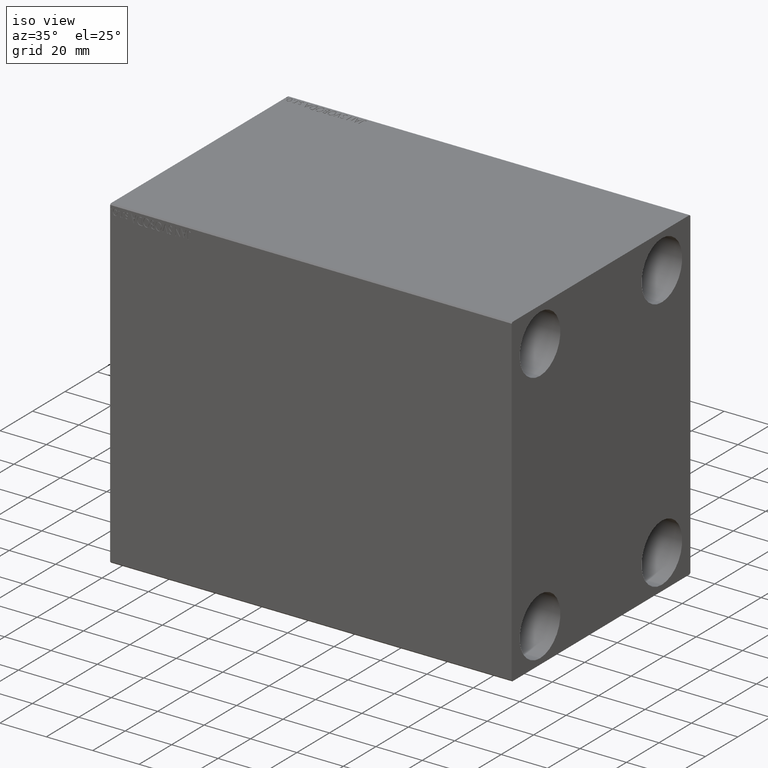
[diagram: clean part render]
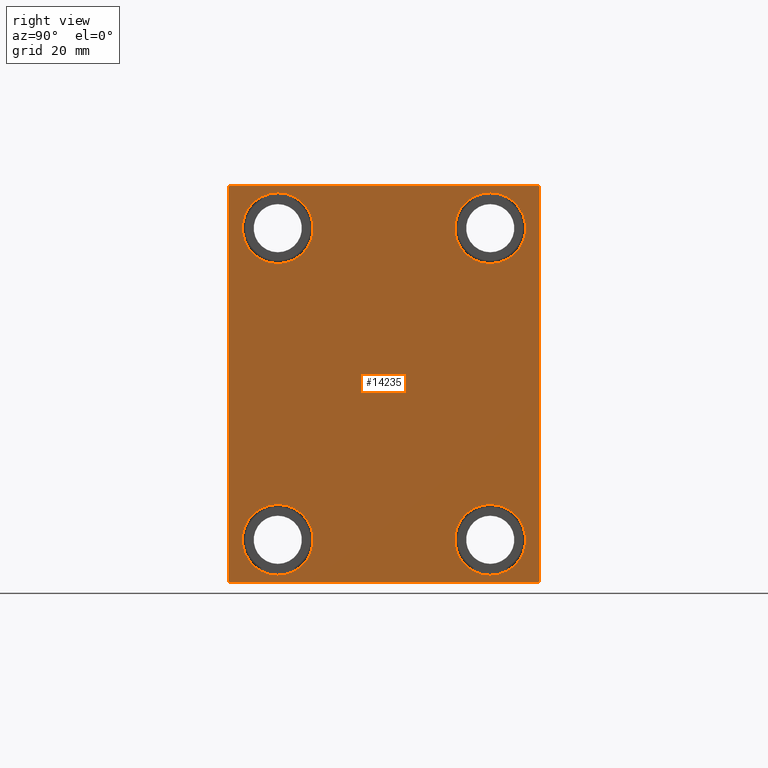
[diagram: tour spotlight — one face highlighted and labeled with its STEP entity id]
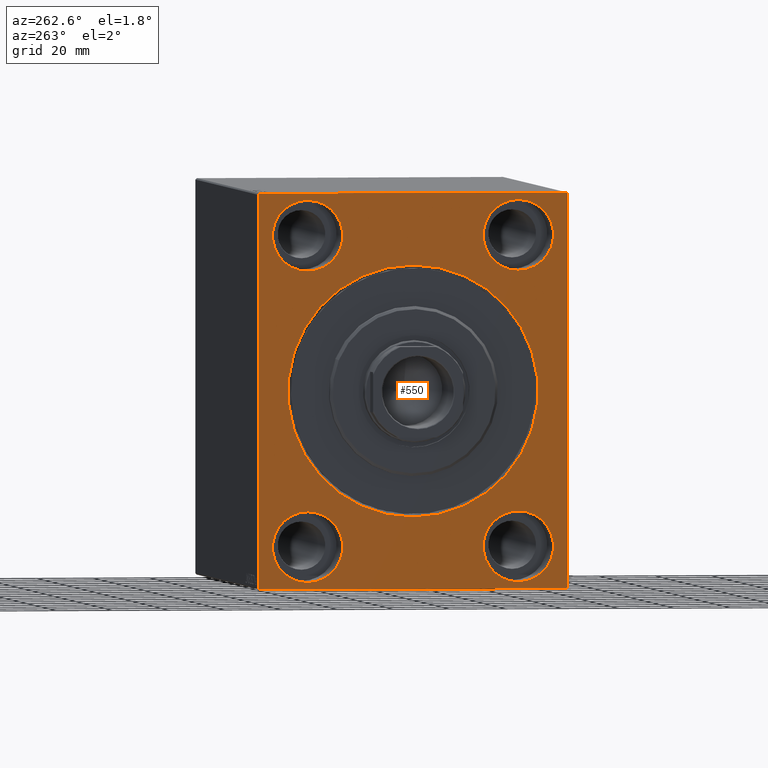
[diagram: tour spotlight — one face highlighted and labeled with its STEP entity id]
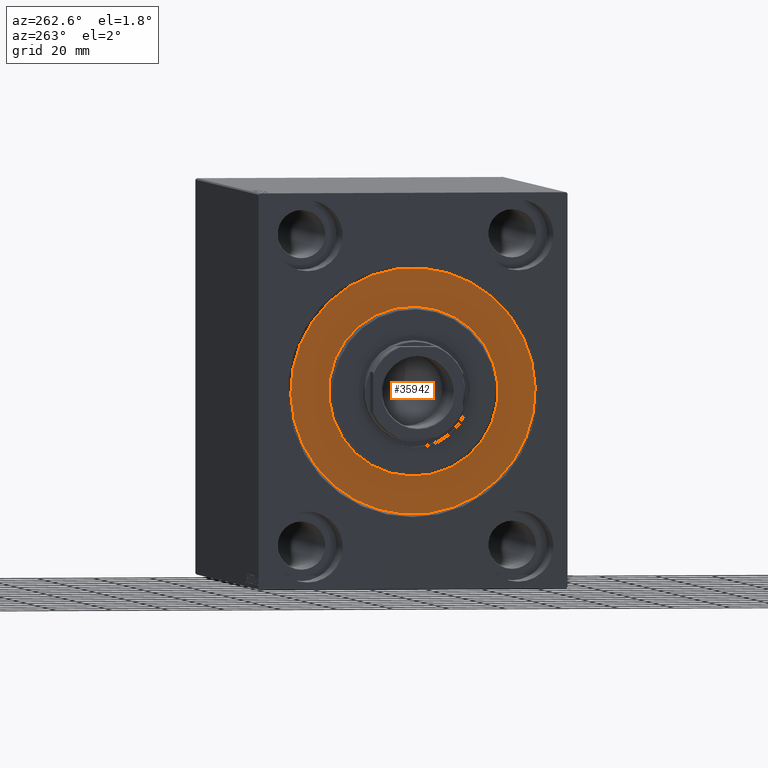
[diagram: tour spotlight — one face highlighted and labeled with its STEP entity id]
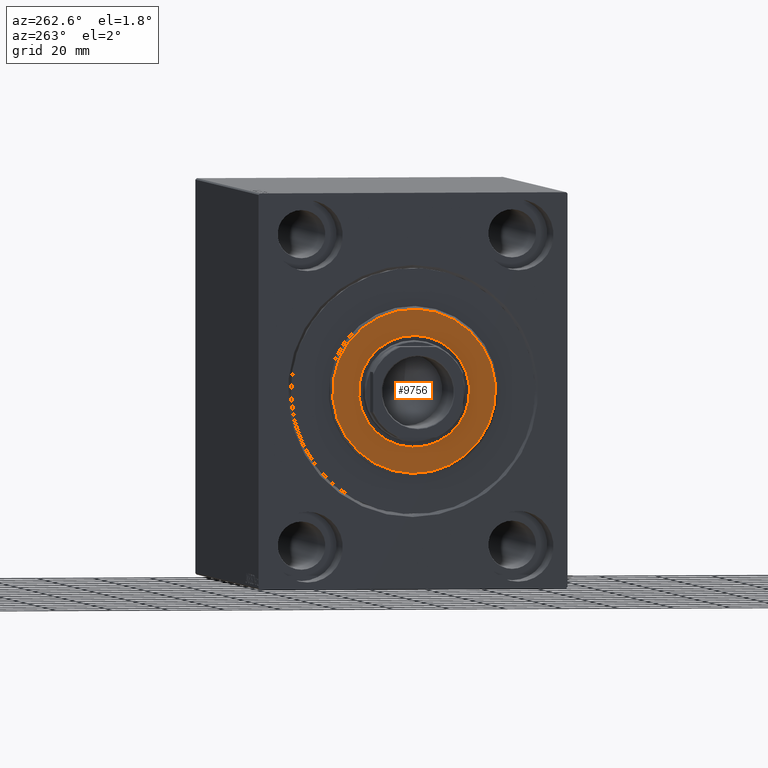
[diagram: tour spotlight — one face highlighted and labeled with its STEP entity id]
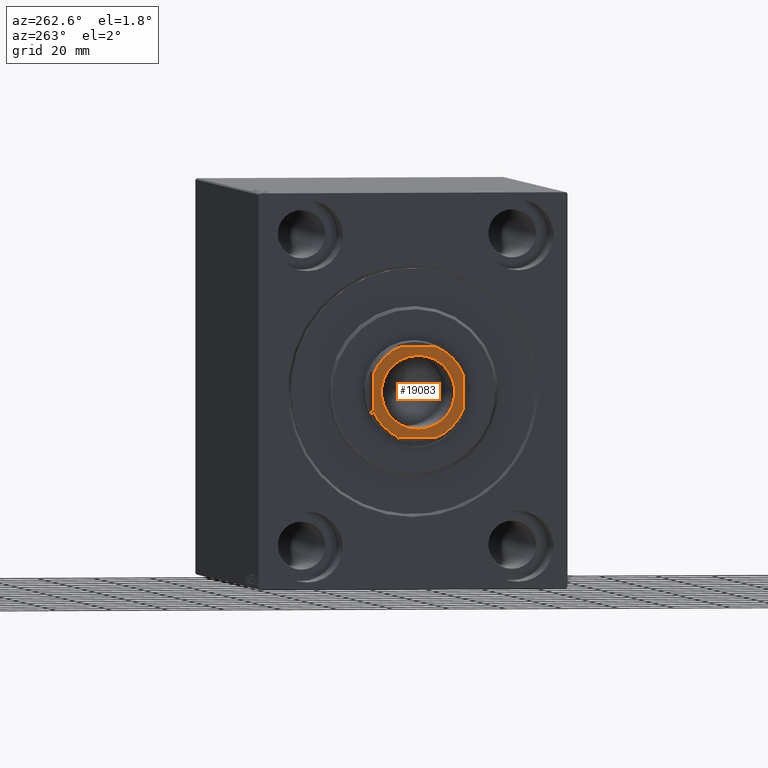
[diagram: tour spotlight — one face highlighted and labeled with its STEP entity id]
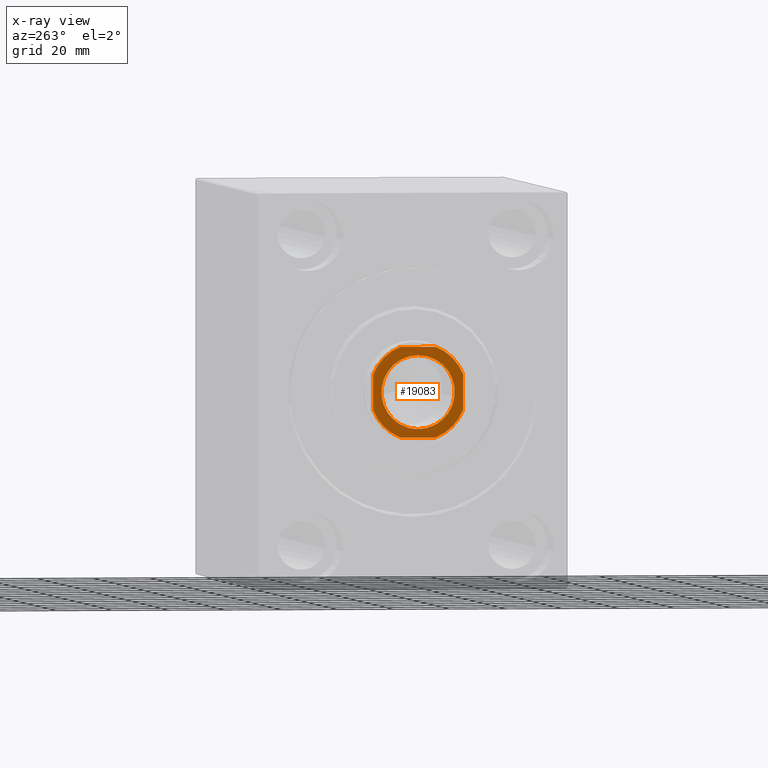
[diagram: x-ray of the same camera — body ghosted, this tour face saturated]
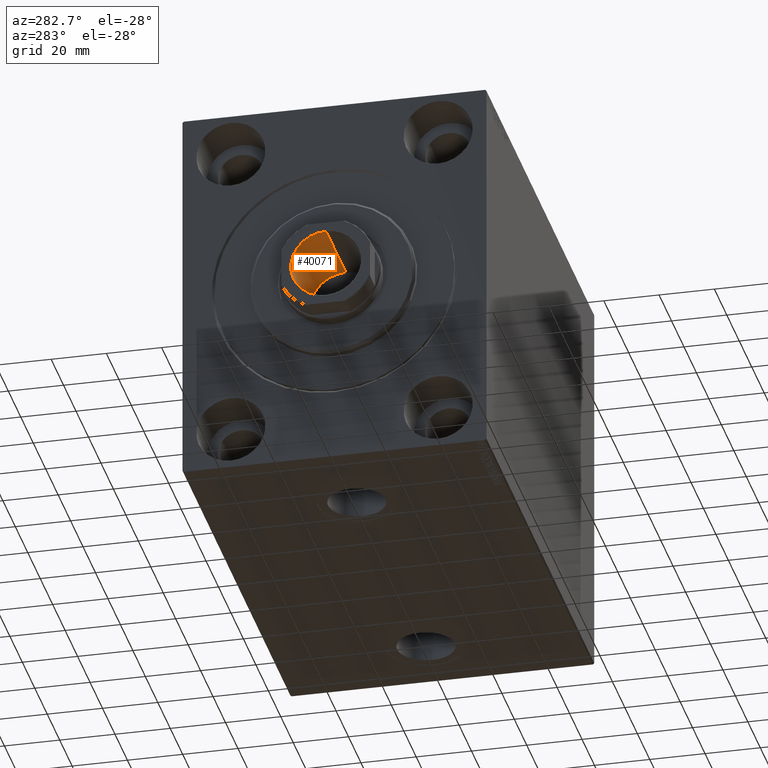
[diagram: tour spotlight — one face highlighted and labeled with its STEP entity id]
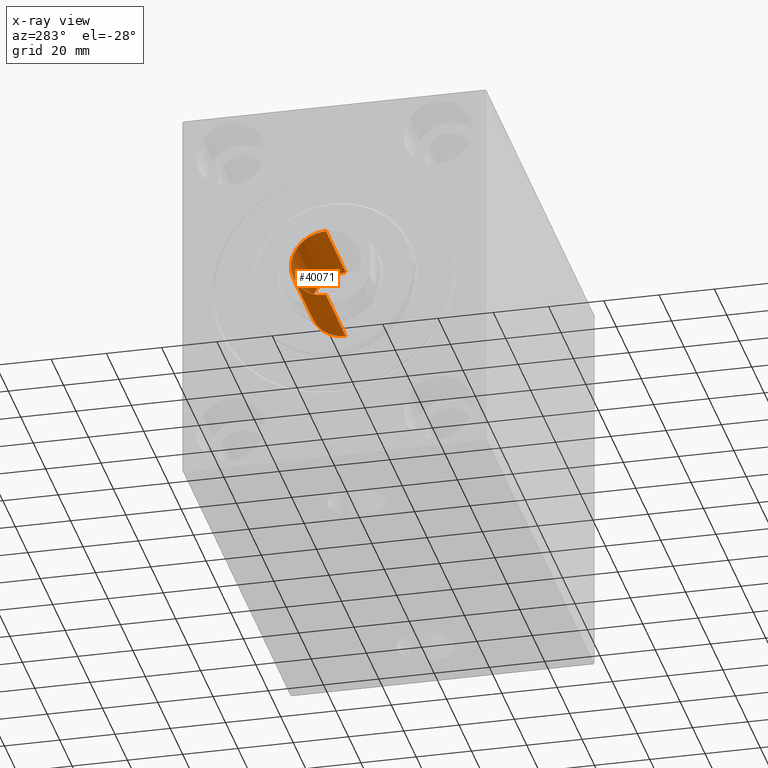
[diagram: x-ray of the same camera — body ghosted, this tour face saturated]
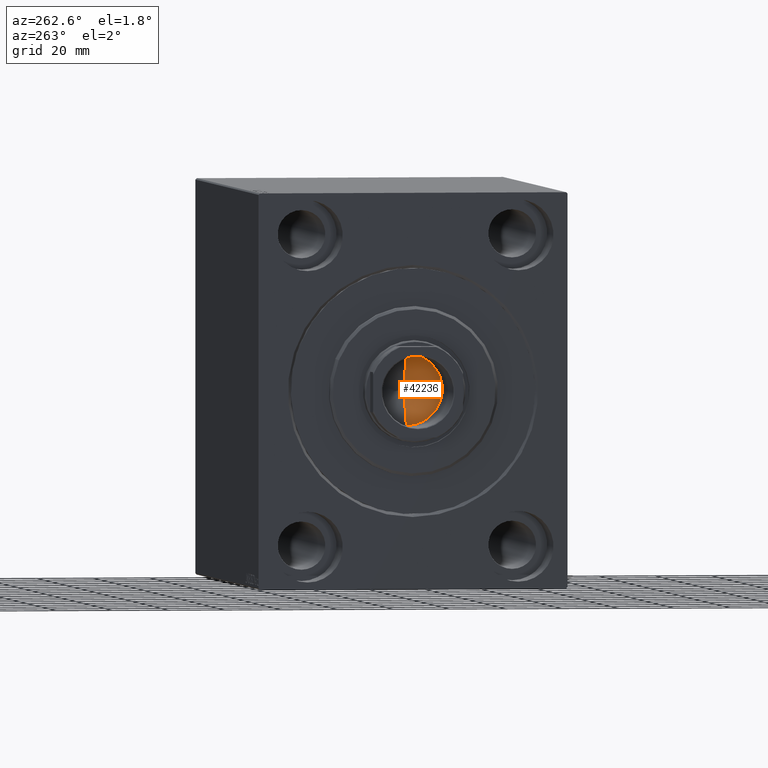
[diagram: tour spotlight — one face highlighted and labeled with its STEP entity id]
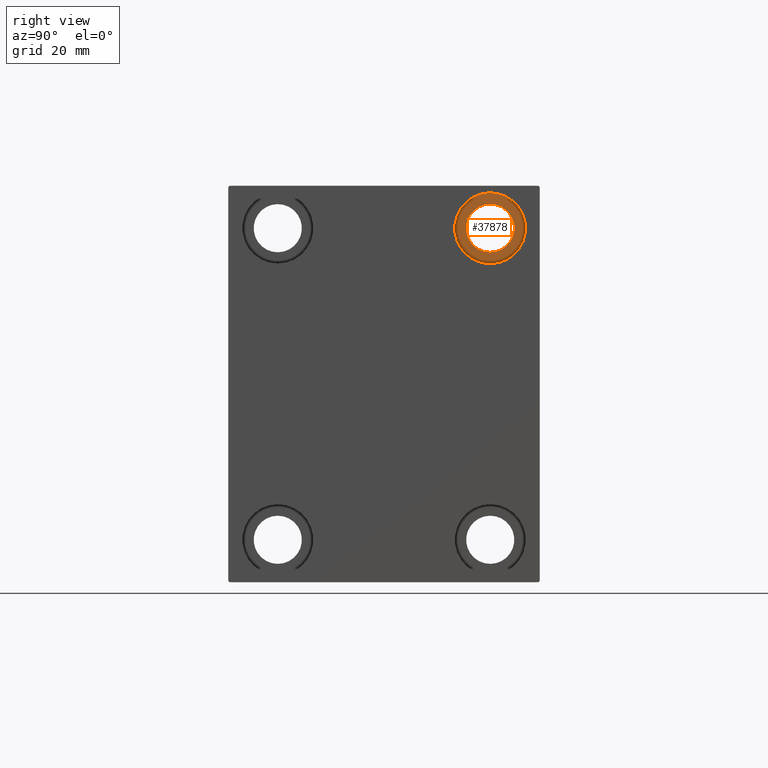
[diagram: tour spotlight — one face highlighted and labeled with its STEP entity id]
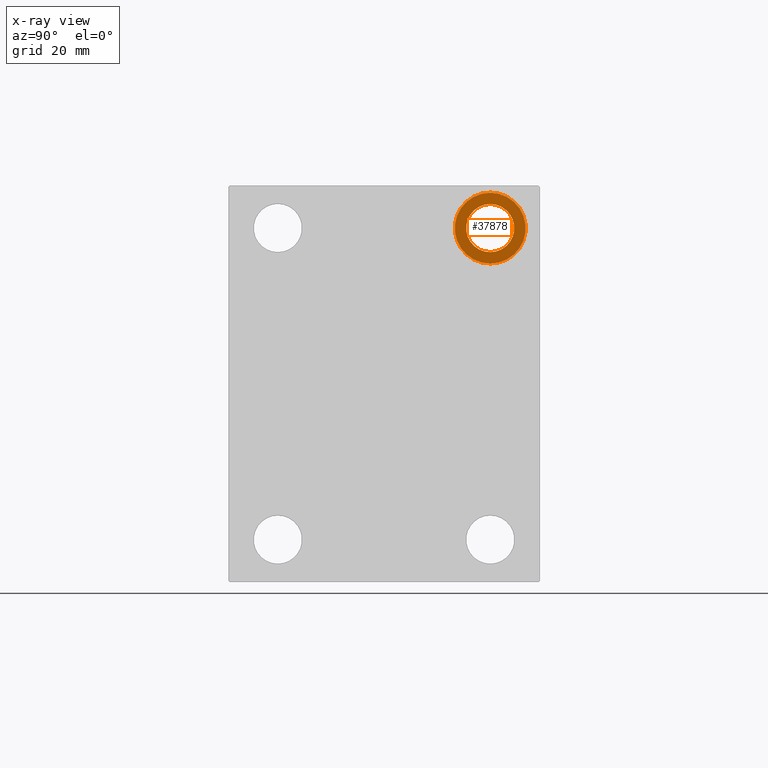
[diagram: x-ray of the same camera — body ghosted, this tour face saturated]
A machine part: a face-by-face anatomy tour. The part has 865 B-rep faces; the first image is the clean iso view, then the 8 largest visible faces are spotlighted one at a time (largest first), each with its STEP entity span.

Face 1 — right view, entity #14235. In plain terms, the highlighted planar face has unit normal (1, 0, 0).
Definition (entity closure, byte-faithful):
#67 = CARTESIAN_POINT ( 'NONE',  ( 173.0000000000000000, 55.00000000000002132, -70.00000000000000000 ) ) ;
#109 = CARTESIAN_POINT ( 'NONE',  ( 173.0000000000000000, 55.00000000000002132, -69.49999999999997158 ) ) ;
#133 = VERTEX_POINT ( 'NONE', #7576 ) ;
#585 = ORIENTED_EDGE ( 'NONE', *, *, #25697, .T. ) ;
#740 = ORIENTED_EDGE ( 'NONE', *, *, #17858, .T. ) ;
#942 = DIRECTION ( 'NONE',  ( -1.000000000000000000, -0.000000000000000000, -0.000000000000000000 ) ) ;
#961 = VERTEX_POINT ( 'NONE', #2200 ) ;
#1082 = CARTESIAN_POINT ( 'NONE',  ( 173.0000000000000000, -37.50000000000002132, -67.49999999999998579 ) ) ;
#1111 = AXIS2_PLACEMENT_3D ( 'NONE', #3332, #9806, #13141 ) ;
#1386 = CARTESIAN_POINT ( 'NONE',  ( 173.0000000000000000, -54.49999999999997868, -70.00000000000002842 ) ) ;
#1506 = DIRECTION ( 'NONE',  ( -1.000000000000000000, -0.000000000000000000, -0.000000000000000000 ) ) ;
#1815 = CARTESIAN_POINT ( 'NONE',  ( 173.0000000000000000, 54.49999999999996447, 70.00000000000000000 ) ) ;
#2200 = CARTESIAN_POINT ( 'NONE',  ( 173.0000000000000000, 37.50000000000000711, 42.50000000000000711 ) ) ;
#2223 = VECTOR ( 'NONE', #9456, 1000.000000000000000 ) ;
#3332 = CARTESIAN_POINT ( 'NONE',  ( 173.0000000000000000, 0.000000000000000000, 0.000000000000000000 ) ) ;
#3417 = EDGE_LOOP ( 'NONE', ( #16374, #40602 ) ) ;
#3421 = VERTEX_POINT ( 'NONE', #1815 ) ;
#3668 = DIRECTION ( 'NONE',  ( -1.000000000000000000, -0.000000000000000000, -0.000000000000000000 ) ) ;
#4153 = ORIENTED_EDGE ( 'NONE', *, *, #15164, .T. ) ;
#5071 = VERTEX_POINT ( 'NONE', #27363 ) ;
#5803 = CARTESIAN_POINT ( 'NONE',  ( 173.0000000000000000, -55.00000000000000711, 69.99999999999998579 ) ) ;
#5966 = DIRECTION ( 'NONE',  ( -1.000000000000000000, -0.000000000000000000, -0.000000000000000000 ) ) ;
#6499 = CARTESIAN_POINT ( 'NONE',  ( 173.0000000000000000, 62.24999999999997868, 62.24999999999997868 ) ) ;
#6503 = VERTEX_POINT ( 'NONE', #13217 ) ;
#6733 = EDGE_CURVE ( 'NONE', #6503, #21303, #12435, .T. ) ;
#7024 = VERTEX_POINT ( 'NONE', #43904 ) ;
#7202 = CARTESIAN_POINT ( 'NONE',  ( 173.0000000000000000, -62.25000000000000000, 62.25000000000000000 ) ) ;
#7443 = VECTOR ( 'NONE', #43758, 1000.000000000000000 ) ;
#7576 = CARTESIAN_POINT ( 'NONE',  ( 173.0000000000000000, 37.50000000000000711, 67.50000000000000000 ) ) ;
#7696 = ORIENTED_EDGE ( 'NONE', *, *, #31282, .T. ) ;
#8176 = VECTOR ( 'NONE', #12058, 1000.000000000000000 ) ;
#8335 = CIRCLE ( 'NONE', #11234, 12.49999999999999645 ) ;
#8479 = EDGE_LOOP ( 'NONE', ( #28709, #42524, #39487, #24109, #13088, #16575, #41735, #585 ) ) ;
#8829 = EDGE_CURVE ( 'NONE', #22589, #7024, #30621, .T. ) ;
#8962 = CIRCLE ( 'NONE', #14659, 12.49999999999999645 ) ;
#9147 = DIRECTION ( 'NONE',  ( 0.000000000000000000, 0.000000000000000000, 1.000000000000000000 ) ) ;
#9295 = CARTESIAN_POINT ( 'NONE',  ( 173.0000000000000000, -37.50000000000000711, 55.00000000000000711 ) ) ;
#9456 = DIRECTION ( 'NONE',  ( 0.000000000000000000, -1.000000000000000000, -1.261617073437677999E-16 ) ) ;
#9758 = ORIENTED_EDGE ( 'NONE', *, *, #17751, .T. ) ;
#9806 = DIRECTION ( 'NONE',  ( 1.000000000000000000, 0.000000000000000000, 0.000000000000000000 ) ) ;
#10138 = DIRECTION ( 'NONE',  ( 0.000000000000000000, 0.000000000000000000, 1.000000000000000000 ) ) ;
#10501 = EDGE_CURVE ( 'NONE', #30088, #32165, #15386, .T. ) ;
#10564 = VERTEX_POINT ( 'NONE', #16269 ) ;
#11234 = AXIS2_PLACEMENT_3D ( 'NONE', #37552, #3668, #20605 ) ;
#11320 = CIRCLE ( 'NONE', #26977, 12.49999999999999645 ) ;
#11442 = VERTEX_POINT ( 'NONE', #40362 ) ;
#12058 = DIRECTION ( 'NONE',  ( 0.000000000000000000, 1.000000000000000000, 2.523234146875355012E-16 ) ) ;
#12435 = CIRCLE ( 'NONE', #21704, 12.49999999999999645 ) ;
#12445 = EDGE_LOOP ( 'NONE', ( #7696, #4153 ) ) ;
#12473 = EDGE_LOOP ( 'NONE', ( #12779, #9758 ) ) ;
#12698 = FACE_BOUND ( 'NONE', #26702, .T. ) ;
#12779 = ORIENTED_EDGE ( 'NONE', *, *, #35122, .T. ) ;
#12806 = DIRECTION ( 'NONE',  ( -1.000000000000000000, -0.000000000000000000, -0.000000000000000000 ) ) ;
#13088 = ORIENTED_EDGE ( 'NONE', *, *, #10501, .T. ) ;
#13141 = DIRECTION ( 'NONE',  ( 0.000000000000000000, 0.000000000000000000, -1.000000000000000000 ) ) ;
#13217 = CARTESIAN_POINT ( 'NONE',  ( 173.0000000000000000, -37.50000000000002132, -42.49999999999999289 ) ) ;
#13328 = AXIS2_PLACEMENT_3D ( 'NONE', #20162, #12806, #10138 ) ;
#14235 = ADVANCED_FACE ( 'NONE', ( #22959, #43232, #12698, #39890, #36553 ), #33876, .T. ) ;
#14659 = AXIS2_PLACEMENT_3D ( 'NONE', #42583, #19181, #9147 ) ;
#14833 = LINE ( 'NONE', #21093, #32061 ) ;
#14960 = CIRCLE ( 'NONE', #15649, 12.49999999999999645 ) ;
#15164 = EDGE_CURVE ( 'NONE', #5071, #31842, #8962, .T. ) ;
#15175 = CARTESIAN_POINT ( 'NONE',  ( 173.0000000000000000, -37.50000000000002132, -54.99999999999999289 ) ) ;
#15386 = LINE ( 'NONE', #28997, #8176 ) ;
#15649 = AXIS2_PLACEMENT_3D ( 'NONE', #9295, #1506, #39833 ) ;
#16116 = AXIS2_PLACEMENT_3D ( 'NONE', #15175, #21658, #35264 ) ;
#16187 = EDGE_CURVE ( 'NONE', #21303, #6503, #28219, .T. ) ;
#16269 = CARTESIAN_POINT ( 'NONE',  ( 173.0000000000000000, -37.50000000000000711, 67.50000000000000000 ) ) ;
#16302 = EDGE_CURVE ( 'NONE', #11442, #43453, #36799, .T. ) ;
#16374 = ORIENTED_EDGE ( 'NONE', *, *, #16187, .T. ) ;
#16575 = ORIENTED_EDGE ( 'NONE', *, *, #35233, .T. ) ;
#16623 = EDGE_CURVE ( 'NONE', #961, #133, #26077, .T. ) ;
#16791 = CARTESIAN_POINT ( 'NONE',  ( 173.0000000000000000, -62.24999999999924682, -62.25000000000098055 ) ) ;
#16974 = DIRECTION ( 'NONE',  ( -0.000000000000000000, -0.7071067811865474617, 0.7071067811865474617 ) ) ;
#17428 = DIRECTION ( 'NONE',  ( 0.000000000000000000, 0.000000000000000000, 1.000000000000000000 ) ) ;
#17463 = DIRECTION ( 'NONE',  ( -0.000000000000000000, 0.7071067811865574537, -0.7071067811865376918 ) ) ;
#17751 = EDGE_CURVE ( 'NONE', #10564, #23842, #40377, .T. ) ;
#17858 = EDGE_CURVE ( 'NONE', #133, #961, #8335, .T. ) ;
#18099 = DIRECTION ( 'NONE',  ( 0.000000000000000000, 0.000000000000000000, 1.000000000000000000 ) ) ;
#18438 = LINE ( 'NONE', #33081, #2223 ) ;
#19181 = DIRECTION ( 'NONE',  ( -1.000000000000000000, -0.000000000000000000, -0.000000000000000000 ) ) ;
#20162 = CARTESIAN_POINT ( 'NONE',  ( 173.0000000000000000, -37.50000000000000711, 55.00000000000000711 ) ) ;
#20605 = DIRECTION ( 'NONE',  ( 0.000000000000000000, 0.000000000000000000, 1.000000000000000000 ) ) ;
#20667 = VECTOR ( 'NONE', #41522, 1000.000000000000114 ) ;
#20794 = VECTOR ( 'NONE', #17463, 999.9999999999998863 ) ;
#21022 = LINE ( 'NONE', #16791, #20794 ) ;
#21093 = CARTESIAN_POINT ( 'NONE',  ( 173.0000000000000000, 62.25000000000000000, -62.25000000000000000 ) ) ;
#21303 = VERTEX_POINT ( 'NONE', #1082 ) ;
#21658 = DIRECTION ( 'NONE',  ( -1.000000000000000000, -0.000000000000000000, -0.000000000000000000 ) ) ;
#21678 = LINE ( 'NONE', #7202, #20667 ) ;
#21704 = AXIS2_PLACEMENT_3D ( 'NONE', #29262, #42855, #17428 ) ;
#21849 = VECTOR ( 'NONE', #16974, 1000.000000000000114 ) ;
#22431 = CARTESIAN_POINT ( 'NONE',  ( 173.0000000000000000, 37.49999999999997868, -67.49999999999998579 ) ) ;
#22589 = VERTEX_POINT ( 'NONE', #109 ) ;
#22959 = FACE_BOUND ( 'NONE', #12445, .T. ) ;
#23141 = CARTESIAN_POINT ( 'NONE',  ( 173.0000000000000000, 37.50000000000000711, 55.00000000000000711 ) ) ;
#23205 = VERTEX_POINT ( 'NONE', #35448 ) ;
#23842 = VERTEX_POINT ( 'NONE', #36159 ) ;
#24109 = ORIENTED_EDGE ( 'NONE', *, *, #43793, .T. ) ;
#25697 = EDGE_CURVE ( 'NONE', #7024, #3421, #27016, .T. ) ;
#26077 = CIRCLE ( 'NONE', #36080, 12.49999999999999645 ) ;
#26089 = DIRECTION ( 'NONE',  ( 0.000000000000000000, 0.000000000000000000, -1.000000000000000000 ) ) ;
#26702 = EDGE_LOOP ( 'NONE', ( #42537, #740 ) ) ;
#26977 = AXIS2_PLACEMENT_3D ( 'NONE', #28353, #942, #18099 ) ;
#27016 = LINE ( 'NONE', #6499, #21849 ) ;
#27363 = CARTESIAN_POINT ( 'NONE',  ( 173.0000000000000000, 37.49999999999997868, -42.49999999999999289 ) ) ;
#28219 = CIRCLE ( 'NONE', #16116, 12.49999999999999645 ) ;
#28353 = CARTESIAN_POINT ( 'NONE',  ( 173.0000000000000000, 37.49999999999997868, -54.99999999999999289 ) ) ;
#28709 = ORIENTED_EDGE ( 'NONE', *, *, #39589, .T. ) ;
#28997 = CARTESIAN_POINT ( 'NONE',  ( 173.0000000000000000, -55.00000000000000711, -70.00000000000002842 ) ) ;
#29262 = CARTESIAN_POINT ( 'NONE',  ( 173.0000000000000000, -37.50000000000002132, -54.99999999999999289 ) ) ;
#29678 = CARTESIAN_POINT ( 'NONE',  ( 173.0000000000000000, 54.49999999999999289, -70.00000000000000000 ) ) ;
#30088 = VERTEX_POINT ( 'NONE', #1386 ) ;
#30621 = LINE ( 'NONE', #67, #7443 ) ;
#31282 = EDGE_CURVE ( 'NONE', #31842, #5071, #11320, .T. ) ;
#31842 = VERTEX_POINT ( 'NONE', #22431 ) ;
#32061 = VECTOR ( 'NONE', #34262, 1000.000000000000114 ) ;
#32165 = VERTEX_POINT ( 'NONE', #29678 ) ;
#33081 = CARTESIAN_POINT ( 'NONE',  ( 173.0000000000000000, 54.99999999999999289, 70.00000000000000000 ) ) ;
#33170 = DIRECTION ( 'NONE',  ( 0.000000000000000000, 0.000000000000000000, 1.000000000000000000 ) ) ;
#33876 = PLANE ( 'NONE',  #1111 ) ;
#34262 = DIRECTION ( 'NONE',  ( -0.000000000000000000, 0.7071067811865474617, 0.7071067811865474617 ) ) ;
#35122 = EDGE_CURVE ( 'NONE', #23842, #10564, #14960, .T. ) ;
#35233 = EDGE_CURVE ( 'NONE', #32165, #22589, #14833, .T. ) ;
#35264 = DIRECTION ( 'NONE',  ( 0.000000000000000000, 0.000000000000000000, 1.000000000000000000 ) ) ;
#35448 = CARTESIAN_POINT ( 'NONE',  ( 173.0000000000000000, -54.50000000000000711, 69.99999999999998579 ) ) ;
#35982 = CARTESIAN_POINT ( 'NONE',  ( 173.0000000000000000, -55.00000000000000711, -69.50000000000001421 ) ) ;
#36080 = AXIS2_PLACEMENT_3D ( 'NONE', #23141, #5966, #33170 ) ;
#36159 = CARTESIAN_POINT ( 'NONE',  ( 173.0000000000000000, -37.50000000000000711, 42.50000000000000711 ) ) ;
#36553 = FACE_OUTER_BOUND ( 'NONE', #8479, .T. ) ;
#36799 = LINE ( 'NONE', #5803, #42462 ) ;
#37552 = CARTESIAN_POINT ( 'NONE',  ( 173.0000000000000000, 37.50000000000000711, 55.00000000000000711 ) ) ;
#39050 = EDGE_CURVE ( 'NONE', #23205, #11442, #21678, .T. ) ;
#39487 = ORIENTED_EDGE ( 'NONE', *, *, #16302, .T. ) ;
#39589 = EDGE_CURVE ( 'NONE', #3421, #23205, #18438, .T. ) ;
#39833 = DIRECTION ( 'NONE',  ( 0.000000000000000000, 0.000000000000000000, 1.000000000000000000 ) ) ;
#39890 = FACE_BOUND ( 'NONE', #3417, .T. ) ;
#40362 = CARTESIAN_POINT ( 'NONE',  ( 173.0000000000000000, -55.00000000000000711, 69.49999999999998579 ) ) ;
#40377 = CIRCLE ( 'NONE', #13328, 12.49999999999999645 ) ;
#40602 = ORIENTED_EDGE ( 'NONE', *, *, #6733, .T. ) ;
#41522 = DIRECTION ( 'NONE',  ( 0.000000000000000000, -0.7071067811865474617, -0.7071067811865474617 ) ) ;
#41735 = ORIENTED_EDGE ( 'NONE', *, *, #8829, .T. ) ;
#42462 = VECTOR ( 'NONE', #26089, 1000.000000000000000 ) ;
#42524 = ORIENTED_EDGE ( 'NONE', *, *, #39050, .T. ) ;
#42537 = ORIENTED_EDGE ( 'NONE', *, *, #16623, .T. ) ;
#42583 = CARTESIAN_POINT ( 'NONE',  ( 173.0000000000000000, 37.49999999999997868, -54.99999999999999289 ) ) ;
#42855 = DIRECTION ( 'NONE',  ( -1.000000000000000000, -0.000000000000000000, -0.000000000000000000 ) ) ;
#43232 = FACE_BOUND ( 'NONE', #12473, .T. ) ;
#43453 = VERTEX_POINT ( 'NONE', #35982 ) ;
#43758 = DIRECTION ( 'NONE',  ( 0.000000000000000000, -1.982541115402065110E-16, 1.000000000000000000 ) ) ;
#43793 = EDGE_CURVE ( 'NONE', #43453, #30088, #21022, .T. ) ;
#43904 = CARTESIAN_POINT ( 'NONE',  ( 173.0000000000000000, 54.99999999999999289, 69.49999999999997158 ) ) ;

Face 2 — auxiliary view, entity #550. In plain terms, the highlighted planar face has unit normal (1, 0, 0).
Definition (entity closure, byte-faithful):
#469 = VECTOR ( 'NONE', #10452, 1000.000000000000000 ) ;
#550 = ADVANCED_FACE ( 'NONE', ( #10391, #21077, #13949, #10175, #6602, #20418 ), #3702, .F. ) ;
#584 = CARTESIAN_POINT ( 'NONE',  ( 0.000000000000000000, -54.49999999999997868, -70.00000000000002842 ) ) ;
#663 = DIRECTION ( 'NONE',  ( 1.000000000000000000, 0.000000000000000000, 0.000000000000000000 ) ) ;
#689 = CARTESIAN_POINT ( 'NONE',  ( 0.000000000000000000, -55.00000000000000711, 69.49999999999998579 ) ) ;
#977 = ORIENTED_EDGE ( 'NONE', *, *, #1425, .F. ) ;
#1020 = LINE ( 'NONE', #17312, #6096 ) ;
#1284 = VECTOR ( 'NONE', #6800, 1000.000000000000114 ) ;
#1425 = EDGE_CURVE ( 'NONE', #18218, #37381, #33683, .T. ) ;
#1532 = VERTEX_POINT ( 'NONE', #4442 ) ;
#1566 = DIRECTION ( 'NONE',  ( 0.000000000000000000, 0.000000000000000000, 1.000000000000000000 ) ) ;
#1581 = DIRECTION ( 'NONE',  ( -1.000000000000000000, 0.000000000000000000, 0.000000000000000000 ) ) ;
#1862 = EDGE_CURVE ( 'NONE', #12508, #33269, #34288, .T. ) ;
#2954 = EDGE_CURVE ( 'NONE', #12508, #37710, #36254, .T. ) ;
#3015 = LINE ( 'NONE', #26648, #1284 ) ;
#3193 = CARTESIAN_POINT ( 'NONE',  ( 0.000000000000000000, 37.50000000000000711, 67.50000000000000000 ) ) ;
#3454 = CARTESIAN_POINT ( 'NONE',  ( 0.000000000000000000, 0.000000000000000000, 0.000000000000000000 ) ) ;
#3702 = PLANE ( 'NONE',  #20851 ) ;
#3857 = AXIS2_PLACEMENT_3D ( 'NONE', #40671, #7010, #10139 ) ;
#3968 = ORIENTED_EDGE ( 'NONE', *, *, #24603, .T. ) ;
#3981 = VERTEX_POINT ( 'NONE', #33947 ) ;
#4241 = EDGE_LOOP ( 'NONE', ( #33545, #23731, #35415, #24624, #5326, #19889, #42219, #3968 ) ) ;
#4442 = CARTESIAN_POINT ( 'NONE',  ( 0.000000000000000000, 0.000000000000000000, 44.49999999999995737 ) ) ;
#4500 = CARTESIAN_POINT ( 'NONE',  ( 0.000000000000000000, 37.49999999999997868, -42.49999999999999289 ) ) ;
#4556 = EDGE_CURVE ( 'NONE', #37381, #18218, #40161, .T. ) ;
#5326 = ORIENTED_EDGE ( 'NONE', *, *, #16789, .F. ) ;
#5419 = VERTEX_POINT ( 'NONE', #30657 ) ;
#5421 = CIRCLE ( 'NONE', #18223, 12.49999999999999645 ) ;
#6096 = VECTOR ( 'NONE', #14395, 1000.000000000000000 ) ;
#6190 = VECTOR ( 'NONE', #41395, 1000.000000000000000 ) ;
#6602 = FACE_BOUND ( 'NONE', #15642, .T. ) ;
#6644 = DIRECTION ( 'NONE',  ( -1.000000000000000000, 0.000000000000000000, 0.000000000000000000 ) ) ;
#6734 = CARTESIAN_POINT ( 'NONE',  ( 0.000000000000000000, 37.50000000000000711, 42.50000000000000711 ) ) ;
#6800 = DIRECTION ( 'NONE',  ( 0.000000000000000000, -0.7071067811865474617, -0.7071067811865474617 ) ) ;
#7010 = DIRECTION ( 'NONE',  ( -1.000000000000000000, 0.000000000000000000, 0.000000000000000000 ) ) ;
#8098 = EDGE_LOOP ( 'NONE', ( #30437, #26248 ) ) ;
#8712 = CARTESIAN_POINT ( 'NONE',  ( 0.000000000000000000, -37.50000000000000711, 55.00000000000000711 ) ) ;
#8772 = EDGE_CURVE ( 'NONE', #22173, #9212, #15233, .T. ) ;
#8808 = DIRECTION ( 'NONE',  ( 0.000000000000000000, 0.000000000000000000, 1.000000000000000000 ) ) ;
#9212 = VERTEX_POINT ( 'NONE', #42908 ) ;
#9268 = CIRCLE ( 'NONE', #42701, 44.49999999999995737 ) ;
#9602 = DIRECTION ( 'NONE',  ( -1.000000000000000000, 0.000000000000000000, 0.000000000000000000 ) ) ;
#9773 = CARTESIAN_POINT ( 'NONE',  ( 0.000000000000000000, -37.50000000000000711, 55.00000000000000711 ) ) ;
#10139 = DIRECTION ( 'NONE',  ( 0.000000000000000000, 0.000000000000000000, 1.000000000000000000 ) ) ;
#10175 = FACE_BOUND ( 'NONE', #22592, .T. ) ;
#10391 = FACE_BOUND ( 'NONE', #42113, .T. ) ;
#10413 = ORIENTED_EDGE ( 'NONE', *, *, #29483, .F. ) ;
#10445 = CARTESIAN_POINT ( 'NONE',  ( 0.000000000000000000, -54.50000000000000711, 69.99999999999998579 ) ) ;
#10452 = DIRECTION ( 'NONE',  ( 0.000000000000000000, 1.000000000000000000, 2.523234146875355012E-16 ) ) ;
#10801 = DIRECTION ( 'NONE',  ( 1.000000000000000000, 0.000000000000000000, 0.000000000000000000 ) ) ;
#11191 = CIRCLE ( 'NONE', #14023, 12.49999999999999645 ) ;
#11308 = LINE ( 'NONE', #27804, #6190 ) ;
#11416 = VERTEX_POINT ( 'NONE', #4500 ) ;
#11462 = ORIENTED_EDGE ( 'NONE', *, *, #14428, .F. ) ;
#12152 = DIRECTION ( 'NONE',  ( -1.000000000000000000, 0.000000000000000000, 0.000000000000000000 ) ) ;
#12508 = VERTEX_POINT ( 'NONE', #689 ) ;
#13949 = FACE_BOUND ( 'NONE', #20919, .T. ) ;
#13952 = CARTESIAN_POINT ( 'NONE',  ( 0.000000000000000000, 54.49999999999999289, -70.00000000000000000 ) ) ;
#13960 = EDGE_CURVE ( 'NONE', #22173, #37710, #1020, .T. ) ;
#14023 = AXIS2_PLACEMENT_3D ( 'NONE', #15479, #43341, #29092 ) ;
#14252 = DIRECTION ( 'NONE',  ( 0.000000000000000000, 0.000000000000000000, -1.000000000000000000 ) ) ;
#14395 = DIRECTION ( 'NONE',  ( 0.000000000000000000, -1.000000000000000000, -1.261617073437677999E-16 ) ) ;
#14428 = EDGE_CURVE ( 'NONE', #26810, #28336, #5421, .T. ) ;
#14871 = EDGE_CURVE ( 'NONE', #1532, #16964, #29622, .T. ) ;
#15233 = LINE ( 'NONE', #18807, #35861 ) ;
#15479 = CARTESIAN_POINT ( 'NONE',  ( 0.000000000000000000, 37.49999999999997868, -54.99999999999999289 ) ) ;
#15642 = EDGE_LOOP ( 'NONE', ( #11462, #10413 ) ) ;
#16607 = AXIS2_PLACEMENT_3D ( 'NONE', #20513, #9602, #26764 ) ;
#16789 = EDGE_CURVE ( 'NONE', #5419, #9212, #11308, .T. ) ;
#16845 = DIRECTION ( 'NONE',  ( 0.000000000000000000, 0.000000000000000000, -1.000000000000000000 ) ) ;
#16964 = VERTEX_POINT ( 'NONE', #40250 ) ;
#17048 = DIRECTION ( 'NONE',  ( 0.000000000000000000, 0.000000000000000000, -1.000000000000000000 ) ) ;
#17312 = CARTESIAN_POINT ( 'NONE',  ( 0.000000000000000000, 54.99999999999999289, 70.00000000000000000 ) ) ;
#17338 = DIRECTION ( 'NONE',  ( 0.000000000000000000, 0.000000000000000000, -1.000000000000000000 ) ) ;
#17357 = LINE ( 'NONE', #20477, #469 ) ;
#17856 = DIRECTION ( 'NONE',  ( -1.000000000000000000, 0.000000000000000000, 0.000000000000000000 ) ) ;
#17893 = AXIS2_PLACEMENT_3D ( 'NONE', #9773, #6644, #23374 ) ;
#18218 = VERTEX_POINT ( 'NONE', #6734 ) ;
#18223 = AXIS2_PLACEMENT_3D ( 'NONE', #35028, #17856, #1566 ) ;
#18673 = CARTESIAN_POINT ( 'NONE',  ( 0.000000000000000000, -37.50000000000002132, -42.49999999999999289 ) ) ;
#18807 = CARTESIAN_POINT ( 'NONE',  ( 0.000000000000000000, 54.49999999999996447, 70.00000000000000000 ) ) ;
#19889 = ORIENTED_EDGE ( 'NONE', *, *, #27825, .T. ) ;
#20418 = FACE_OUTER_BOUND ( 'NONE', #4241, .T. ) ;
#20477 = CARTESIAN_POINT ( 'NONE',  ( 0.000000000000000000, -55.00000000000000711, -70.00000000000002842 ) ) ;
#20513 = CARTESIAN_POINT ( 'NONE',  ( 0.000000000000000000, 37.50000000000000711, 55.00000000000000711 ) ) ;
#20851 = AXIS2_PLACEMENT_3D ( 'NONE', #27337, #27553, #16845 ) ;
#20919 = EDGE_LOOP ( 'NONE', ( #31134, #38894 ) ) ;
#21077 = FACE_BOUND ( 'NONE', #8098, .T. ) ;
#21784 = EDGE_CURVE ( 'NONE', #11416, #3981, #42073, .T. ) ;
#22173 = VERTEX_POINT ( 'NONE', #26807 ) ;
#22592 = EDGE_LOOP ( 'NONE', ( #28788, #977 ) ) ;
#23089 = EDGE_CURVE ( 'NONE', #34580, #34314, #23325, .T. ) ;
#23325 = CIRCLE ( 'NONE', #39596, 12.49999999999999645 ) ;
#23374 = DIRECTION ( 'NONE',  ( 0.000000000000000000, 0.000000000000000000, 1.000000000000000000 ) ) ;
#23432 = EDGE_CURVE ( 'NONE', #30565, #33326, #17357, .T. ) ;
#23731 = ORIENTED_EDGE ( 'NONE', *, *, #2954, .T. ) ;
#24480 = VECTOR ( 'NONE', #42273, 1000.000000000000114 ) ;
#24603 = EDGE_CURVE ( 'NONE', #30565, #33269, #31776, .T. ) ;
#24624 = ORIENTED_EDGE ( 'NONE', *, *, #8772, .T. ) ;
#25430 = EDGE_CURVE ( 'NONE', #3981, #11416, #11191, .T. ) ;
#26248 = ORIENTED_EDGE ( 'NONE', *, *, #25430, .F. ) ;
#26648 = CARTESIAN_POINT ( 'NONE',  ( 0.000000000000000000, 55.00000000000002132, -69.49999999999997158 ) ) ;
#26764 = DIRECTION ( 'NONE',  ( 0.000000000000000000, 0.000000000000000000, 1.000000000000000000 ) ) ;
#26807 = CARTESIAN_POINT ( 'NONE',  ( 0.000000000000000000, 54.49999999999996447, 70.00000000000000000 ) ) ;
#26810 = VERTEX_POINT ( 'NONE', #18673 ) ;
#27337 = CARTESIAN_POINT ( 'NONE',  ( 0.000000000000000000, 0.000000000000000000, 0.000000000000000000 ) ) ;
#27537 = CARTESIAN_POINT ( 'NONE',  ( 0.000000000000000000, -37.50000000000002132, -67.49999999999998579 ) ) ;
#27553 = DIRECTION ( 'NONE',  ( 1.000000000000000000, 0.000000000000000000, 0.000000000000000000 ) ) ;
#27804 = CARTESIAN_POINT ( 'NONE',  ( 0.000000000000000000, 55.00000000000002132, -70.00000000000000000 ) ) ;
#27825 = EDGE_CURVE ( 'NONE', #5419, #33326, #3015, .T. ) ;
#28336 = VERTEX_POINT ( 'NONE', #27537 ) ;
#28788 = ORIENTED_EDGE ( 'NONE', *, *, #4556, .F. ) ;
#29092 = DIRECTION ( 'NONE',  ( 0.000000000000000000, 0.000000000000000000, 1.000000000000000000 ) ) ;
#29218 = DIRECTION ( 'NONE',  ( 0.000000000000000000, 0.000000000000000000, 1.000000000000000000 ) ) ;
#29483 = EDGE_CURVE ( 'NONE', #28336, #26810, #36909, .T. ) ;
#29566 = CARTESIAN_POINT ( 'NONE',  ( 0.000000000000000000, -55.00000000000000711, 69.49999999999998579 ) ) ;
#29622 = CIRCLE ( 'NONE', #33187, 44.49999999999995737 ) ;
#30341 = DIRECTION ( 'NONE',  ( -1.000000000000000000, 0.000000000000000000, 0.000000000000000000 ) ) ;
#30437 = ORIENTED_EDGE ( 'NONE', *, *, #21784, .F. ) ;
#30565 = VERTEX_POINT ( 'NONE', #31878 ) ;
#30657 = CARTESIAN_POINT ( 'NONE',  ( 0.000000000000000000, 55.00000000000002132, -69.49999999999997158 ) ) ;
#31134 = ORIENTED_EDGE ( 'NONE', *, *, #23089, .F. ) ;
#31545 = VECTOR ( 'NONE', #17338, 1000.000000000000000 ) ;
#31776 = LINE ( 'NONE', #584, #33241 ) ;
#31856 = CARTESIAN_POINT ( 'NONE',  ( 0.000000000000000000, 0.000000000000000000, 0.000000000000000000 ) ) ;
#31878 = CARTESIAN_POINT ( 'NONE',  ( 0.000000000000000000, -54.49999999999997868, -70.00000000000002842 ) ) ;
#33187 = AXIS2_PLACEMENT_3D ( 'NONE', #3454, #10801, #17048 ) ;
#33241 = VECTOR ( 'NONE', #37816, 999.9999999999998863 ) ;
#33269 = VERTEX_POINT ( 'NONE', #43159 ) ;
#33326 = VERTEX_POINT ( 'NONE', #13952 ) ;
#33460 = DIRECTION ( 'NONE',  ( 0.000000000000000000, 0.000000000000000000, 1.000000000000000000 ) ) ;
#33545 = ORIENTED_EDGE ( 'NONE', *, *, #1862, .F. ) ;
#33683 = CIRCLE ( 'NONE', #16607, 12.49999999999999645 ) ;
#33947 = CARTESIAN_POINT ( 'NONE',  ( 0.000000000000000000, 37.49999999999997868, -67.49999999999998579 ) ) ;
#34261 = AXIS2_PLACEMENT_3D ( 'NONE', #42679, #12152, #8808 ) ;
#34288 = LINE ( 'NONE', #41839, #31545 ) ;
#34314 = VERTEX_POINT ( 'NONE', #35395 ) ;
#34580 = VERTEX_POINT ( 'NONE', #34856 ) ;
#34856 = CARTESIAN_POINT ( 'NONE',  ( 0.000000000000000000, -37.50000000000000711, 67.50000000000000000 ) ) ;
#35028 = CARTESIAN_POINT ( 'NONE',  ( 0.000000000000000000, -37.50000000000002132, -54.99999999999999289 ) ) ;
#35395 = CARTESIAN_POINT ( 'NONE',  ( 0.000000000000000000, -37.50000000000000711, 42.50000000000000711 ) ) ;
#35415 = ORIENTED_EDGE ( 'NONE', *, *, #13960, .F. ) ;
#35803 = EDGE_CURVE ( 'NONE', #16964, #1532, #9268, .T. ) ;
#35861 = VECTOR ( 'NONE', #39531, 1000.000000000000114 ) ;
#36254 = LINE ( 'NONE', #29566, #24480 ) ;
#36909 = CIRCLE ( 'NONE', #44028, 12.49999999999999645 ) ;
#37121 = CIRCLE ( 'NONE', #17893, 12.49999999999999645 ) ;
#37381 = VERTEX_POINT ( 'NONE', #3193 ) ;
#37710 = VERTEX_POINT ( 'NONE', #10445 ) ;
#37816 = DIRECTION ( 'NONE',  ( -0.000000000000000000, -0.7071067811865574537, 0.7071067811865376918 ) ) ;
#38894 = ORIENTED_EDGE ( 'NONE', *, *, #42359, .F. ) ;
#39531 = DIRECTION ( 'NONE',  ( -0.000000000000000000, 0.7071067811865474617, -0.7071067811865474617 ) ) ;
#39596 = AXIS2_PLACEMENT_3D ( 'NONE', #8712, #1581, #29218 ) ;
#40161 = CIRCLE ( 'NONE', #3857, 12.49999999999999645 ) ;
#40250 = CARTESIAN_POINT ( 'NONE',  ( 0.000000000000000000, 5.449678256205716459E-15, -44.49999999999995737 ) ) ;
#40365 = CARTESIAN_POINT ( 'NONE',  ( 0.000000000000000000, -37.50000000000002132, -54.99999999999999289 ) ) ;
#40671 = CARTESIAN_POINT ( 'NONE',  ( 0.000000000000000000, 37.50000000000000711, 55.00000000000000711 ) ) ;
#40678 = ORIENTED_EDGE ( 'NONE', *, *, #14871, .T. ) ;
#41395 = DIRECTION ( 'NONE',  ( 0.000000000000000000, -1.982541115402065110E-16, 1.000000000000000000 ) ) ;
#41729 = ORIENTED_EDGE ( 'NONE', *, *, #35803, .T. ) ;
#41839 = CARTESIAN_POINT ( 'NONE',  ( 0.000000000000000000, -55.00000000000000711, 69.99999999999998579 ) ) ;
#42073 = CIRCLE ( 'NONE', #34261, 12.49999999999999645 ) ;
#42113 = EDGE_LOOP ( 'NONE', ( #40678, #41729 ) ) ;
#42219 = ORIENTED_EDGE ( 'NONE', *, *, #23432, .F. ) ;
#42273 = DIRECTION ( 'NONE',  ( -0.000000000000000000, 0.7071067811865474617, 0.7071067811865474617 ) ) ;
#42359 = EDGE_CURVE ( 'NONE', #34314, #34580, #37121, .T. ) ;
#42679 = CARTESIAN_POINT ( 'NONE',  ( 0.000000000000000000, 37.49999999999997868, -54.99999999999999289 ) ) ;
#42701 = AXIS2_PLACEMENT_3D ( 'NONE', #31856, #663, #14252 ) ;
#42908 = CARTESIAN_POINT ( 'NONE',  ( 0.000000000000000000, 54.99999999999999289, 69.49999999999997158 ) ) ;
#43159 = CARTESIAN_POINT ( 'NONE',  ( 0.000000000000000000, -55.00000000000000711, -69.50000000000001421 ) ) ;
#43341 = DIRECTION ( 'NONE',  ( -1.000000000000000000, 0.000000000000000000, 0.000000000000000000 ) ) ;
#44028 = AXIS2_PLACEMENT_3D ( 'NONE', #40365, #30341, #33460 ) ;

Face 3 — auxiliary view, entity #35942. In plain terms, the highlighted planar face has unit normal (1, 0, -0).
Definition (entity closure, byte-faithful):
#164 = DIRECTION ( 'NONE',  ( -1.000000000000000000, 0.000000000000000000, 0.000000000000000000 ) ) ;
#1123 = EDGE_CURVE ( 'NONE', #43201, #35756, #32962, .T. ) ;
#4437 = CARTESIAN_POINT ( 'NONE',  ( 0.000000000000000000, 0.000000000000000000, -43.50000000000000000 ) ) ;
#6882 = DIRECTION ( 'NONE',  ( -1.000000000000000000, 0.000000000000000000, 0.000000000000000000 ) ) ;
#7101 = CARTESIAN_POINT ( 'NONE',  ( 0.000000000000000000, 0.000000000000000000, 0.000000000000000000 ) ) ;
#7753 = DIRECTION ( 'NONE',  ( 0.000000000000000000, 0.000000000000000000, 1.000000000000000000 ) ) ;
#8493 = EDGE_CURVE ( 'NONE', #32050, #26232, #39414, .T. ) ;
#8570 = CIRCLE ( 'NONE', #17104, 30.00000000000000000 ) ;
#8824 = DIRECTION ( 'NONE',  ( 1.000000000000000000, -0.000000000000000000, 0.000000000000000000 ) ) ;
#11866 = ORIENTED_EDGE ( 'NONE', *, *, #34980, .F. ) ;
#13320 = PLANE ( 'NONE',  #41315 ) ;
#13356 = CARTESIAN_POINT ( 'NONE',  ( 0.000000000000000000, 0.000000000000000000, 0.000000000000000000 ) ) ;
#14115 = CIRCLE ( 'NONE', #20545, 43.50000000000000000 ) ;
#14974 = CARTESIAN_POINT ( 'NONE',  ( 0.000000000000000000, 3.673940397442059178E-15, -30.00000000000000000 ) ) ;
#16029 = EDGE_LOOP ( 'NONE', ( #11866, #26966 ) ) ;
#16498 = ORIENTED_EDGE ( 'NONE', *, *, #1123, .F. ) ;
#17104 = AXIS2_PLACEMENT_3D ( 'NONE', #13356, #17144, #29861 ) ;
#17144 = DIRECTION ( 'NONE',  ( 1.000000000000000000, -0.000000000000000000, 0.000000000000000000 ) ) ;
#18901 = FACE_BOUND ( 'NONE', #16029, .T. ) ;
#18923 = DIRECTION ( 'NONE',  ( -1.000000000000000000, 0.000000000000000000, 0.000000000000000000 ) ) ;
#20545 = AXIS2_PLACEMENT_3D ( 'NONE', #42124, #18923, #28965 ) ;
#20937 = AXIS2_PLACEMENT_3D ( 'NONE', #25762, #8824, #22424 ) ;
#21040 = CARTESIAN_POINT ( 'NONE',  ( 0.000000000000000000, 0.000000000000000000, 30.00000000000000000 ) ) ;
#22424 = DIRECTION ( 'NONE',  ( 0.000000000000000000, 0.000000000000000000, -1.000000000000000000 ) ) ;
#22911 = EDGE_LOOP ( 'NONE', ( #41185, #16498 ) ) ;
#23367 = DIRECTION ( 'NONE',  ( 0.000000000000000000, 0.000000000000000000, 1.000000000000000000 ) ) ;
#25762 = CARTESIAN_POINT ( 'NONE',  ( 0.000000000000000000, 0.000000000000000000, 0.000000000000000000 ) ) ;
#26232 = VERTEX_POINT ( 'NONE', #21040 ) ;
#26966 = ORIENTED_EDGE ( 'NONE', *, *, #8493, .F. ) ;
#28965 = DIRECTION ( 'NONE',  ( 0.000000000000000000, 0.000000000000000000, 1.000000000000000000 ) ) ;
#29618 = CARTESIAN_POINT ( 'NONE',  ( 0.000000000000000000, 5.327213576290986044E-15, 43.50000000000000000 ) ) ;
#29861 = DIRECTION ( 'NONE',  ( 0.000000000000000000, 0.000000000000000000, -1.000000000000000000 ) ) ;
#30524 = EDGE_CURVE ( 'NONE', #35756, #43201, #14115, .T. ) ;
#32050 = VERTEX_POINT ( 'NONE', #14974 ) ;
#32962 = CIRCLE ( 'NONE', #38672, 43.50000000000000000 ) ;
#33835 = CARTESIAN_POINT ( 'NONE',  ( 0.000000000000000000, 0.000000000000000000, 0.000000000000000000 ) ) ;
#34980 = EDGE_CURVE ( 'NONE', #26232, #32050, #8570, .T. ) ;
#35756 = VERTEX_POINT ( 'NONE', #4437 ) ;
#35942 = ADVANCED_FACE ( 'NONE', ( #18901, #42747 ), #13320, .F. ) ;
#38672 = AXIS2_PLACEMENT_3D ( 'NONE', #7101, #6882, #7753 ) ;
#39414 = CIRCLE ( 'NONE', #20937, 30.00000000000000000 ) ;
#41185 = ORIENTED_EDGE ( 'NONE', *, *, #30524, .F. ) ;
#41315 = AXIS2_PLACEMENT_3D ( 'NONE', #33835, #164, #23367 ) ;
#42124 = CARTESIAN_POINT ( 'NONE',  ( 0.000000000000000000, 0.000000000000000000, 0.000000000000000000 ) ) ;
#42747 = FACE_OUTER_BOUND ( 'NONE', #22911, .T. ) ;
#43201 = VERTEX_POINT ( 'NONE', #29618 ) ;

Face 4 — auxiliary view, entity #9756. In plain terms, the highlighted planar face has unit normal (-1, 0, 0).
Definition (entity closure, byte-faithful):
#1951 = VERTEX_POINT ( 'NONE', #11959 ) ;
#5456 = EDGE_CURVE ( 'NONE', #13259, #14663, #32362, .T. ) ;
#6194 = EDGE_CURVE ( 'NONE', #1951, #36942, #25242, .T. ) ;
#7593 = CARTESIAN_POINT ( 'NONE',  ( 3.000000000000000000, 0.000000000000000000, 19.75000000000000000 ) ) ;
#7839 = EDGE_LOOP ( 'NONE', ( #33800, #36083 ) ) ;
#8488 = DIRECTION ( 'NONE',  ( 0.000000000000000000, 0.000000000000000000, -1.000000000000000000 ) ) ;
#8659 = CIRCLE ( 'NONE', #16516, 28.99999999999999289 ) ;
#9715 = DIRECTION ( 'NONE',  ( -1.000000000000000000, 0.000000000000000000, -0.000000000000000000 ) ) ;
#9756 = ADVANCED_FACE ( 'NONE', ( #21212, #35033 ), #28769, .T. ) ;
#10804 = DIRECTION ( 'NONE',  ( 0.000000000000000000, 0.000000000000000000, -1.000000000000000000 ) ) ;
#11699 = DIRECTION ( 'NONE',  ( 1.000000000000000000, -0.000000000000000000, 0.000000000000000000 ) ) ;
#11959 = CARTESIAN_POINT ( 'NONE',  ( 3.000000000000000000, 3.612708057484691604E-15, -28.99999999999999289 ) ) ;
#12166 = DIRECTION ( 'NONE',  ( 1.000000000000000000, -0.000000000000000000, 0.000000000000000000 ) ) ;
#13259 = VERTEX_POINT ( 'NONE', #7593 ) ;
#14262 = EDGE_LOOP ( 'NONE', ( #29126, #18018 ) ) ;
#14663 = VERTEX_POINT ( 'NONE', #36007 ) ;
#15506 = AXIS2_PLACEMENT_3D ( 'NONE', #26655, #9715, #26208 ) ;
#16516 = AXIS2_PLACEMENT_3D ( 'NONE', #42227, #11699, #42010 ) ;
#18018 = ORIENTED_EDGE ( 'NONE', *, *, #6194, .T. ) ;
#18512 = CARTESIAN_POINT ( 'NONE',  ( 3.000000000000000000, 0.000000000000000000, 0.000000000000000000 ) ) ;
#18848 = DIRECTION ( 'NONE',  ( 0.000000000000000000, 0.000000000000000000, -1.000000000000000000 ) ) ;
#19971 = EDGE_CURVE ( 'NONE', #14663, #13259, #40438, .T. ) ;
#21212 = FACE_OUTER_BOUND ( 'NONE', #14262, .T. ) ;
#25242 = CIRCLE ( 'NONE', #30952, 28.99999999999999289 ) ;
#25273 = CARTESIAN_POINT ( 'NONE',  ( 3.000000000000000000, 0.000000000000000000, 0.000000000000000000 ) ) ;
#26208 = DIRECTION ( 'NONE',  ( 0.000000000000000000, 0.000000000000000000, -1.000000000000000000 ) ) ;
#26655 = CARTESIAN_POINT ( 'NONE',  ( 3.000000000000000000, 0.000000000000000000, 0.000000000000000000 ) ) ;
#28683 = CARTESIAN_POINT ( 'NONE',  ( 3.000000000000000000, 0.000000000000000000, 28.99999999999999289 ) ) ;
#28769 = PLANE ( 'NONE',  #31634 ) ;
#29126 = ORIENTED_EDGE ( 'NONE', *, *, #43512, .T. ) ;
#30952 = AXIS2_PLACEMENT_3D ( 'NONE', #36463, #12166, #18848 ) ;
#31634 = AXIS2_PLACEMENT_3D ( 'NONE', #18512, #31903, #8488 ) ;
#31903 = DIRECTION ( 'NONE',  ( 1.000000000000000000, -0.000000000000000000, 0.000000000000000000 ) ) ;
#32362 = CIRCLE ( 'NONE', #35928, 19.75000000000000000 ) ;
#33800 = ORIENTED_EDGE ( 'NONE', *, *, #5456, .T. ) ;
#34657 = DIRECTION ( 'NONE',  ( -1.000000000000000000, 0.000000000000000000, -0.000000000000000000 ) ) ;
#35033 = FACE_BOUND ( 'NONE', #7839, .T. ) ;
#35928 = AXIS2_PLACEMENT_3D ( 'NONE', #25273, #34657, #10804 ) ;
#36007 = CARTESIAN_POINT ( 'NONE',  ( 3.000000000000000000, 2.418677428316022331E-15, -19.75000000000000000 ) ) ;
#36083 = ORIENTED_EDGE ( 'NONE', *, *, #19971, .T. ) ;
#36463 = CARTESIAN_POINT ( 'NONE',  ( 3.000000000000000000, 0.000000000000000000, 0.000000000000000000 ) ) ;
#36942 = VERTEX_POINT ( 'NONE', #28683 ) ;
#40438 = CIRCLE ( 'NONE', #15506, 19.75000000000000000 ) ;
#42010 = DIRECTION ( 'NONE',  ( 0.000000000000000000, 0.000000000000000000, -1.000000000000000000 ) ) ;
#42227 = CARTESIAN_POINT ( 'NONE',  ( 3.000000000000000000, 0.000000000000000000, 0.000000000000000000 ) ) ;
#43512 = EDGE_CURVE ( 'NONE', #36942, #1951, #8659, .T. ) ;

Face 5 — auxiliary view, entity #19083. An x-ray twin of the same camera follows (body ghosted, this face saturated) — the face is partly hidden behind the body. In plain terms, the highlighted planar face has unit normal (-1, 0, 0).
Definition (entity closure, byte-faithful):
#419 = CARTESIAN_POINT ( 'NONE',  ( 0.000000000000000000, 0.000000000000000000, 166.0000000000000000 ) ) ;
#1050 = AXIS2_PLACEMENT_3D ( 'NONE', #5200, #18800, #32403 ) ;
#1205 = VECTOR ( 'NONE', #1832, 1000.000000000000000 ) ;
#1832 = DIRECTION ( 'NONE',  ( 1.000000000000000000, 0.000000000000000000, 0.000000000000000000 ) ) ;
#1991 = VERTEX_POINT ( 'NONE', #38931 ) ;
#2016 = CARTESIAN_POINT ( 'NONE',  ( -16.00000000000000000, 16.00000000000000000, 166.0000000000000000 ) ) ;
#2101 = VERTEX_POINT ( 'NONE', #17935 ) ;
#2197 = ORIENTED_EDGE ( 'NONE', *, *, #40405, .T. ) ;
#2375 = CIRCLE ( 'NONE', #1050, 17.20000000000002416 ) ;
#4135 = AXIS2_PLACEMENT_3D ( 'NONE', #5848, #40180, #43521 ) ;
#4198 = VERTEX_POINT ( 'NONE', #29591 ) ;
#4537 = EDGE_LOOP ( 'NONE', ( #15201, #2197, #13959, #39117, #5733, #16737, #5052, #7497 ) ) ;
#5052 = ORIENTED_EDGE ( 'NONE', *, *, #17097, .T. ) ;
#5200 = CARTESIAN_POINT ( 'NONE',  ( 0.000000000000000000, 0.000000000000000000, 166.0000000000000000 ) ) ;
#5733 = ORIENTED_EDGE ( 'NONE', *, *, #7717, .T. ) ;
#5845 = DIRECTION ( 'NONE',  ( 1.000000000000000000, 0.000000000000000000, 0.000000000000000000 ) ) ;
#5848 = CARTESIAN_POINT ( 'NONE',  ( 0.000000000000000000, 0.000000000000000000, 166.0000000000000000 ) ) ;
#6299 = DIRECTION ( 'NONE',  ( 1.000000000000000000, 0.000000000000000000, 0.000000000000000000 ) ) ;
#6476 = EDGE_CURVE ( 'NONE', #2101, #20353, #2375, .T. ) ;
#7320 = DIRECTION ( 'NONE',  ( 1.000000000000000000, 0.000000000000000000, 0.000000000000000000 ) ) ;
#7497 = ORIENTED_EDGE ( 'NONE', *, *, #15910, .T. ) ;
#7717 = EDGE_CURVE ( 'NONE', #20353, #41125, #16047, .T. ) ;
#8157 = VERTEX_POINT ( 'NONE', #37628 ) ;
#8983 = DIRECTION ( 'NONE',  ( -0.000000000000000000, 0.000000000000000000, 1.000000000000000000 ) ) ;
#9296 = CARTESIAN_POINT ( 'NONE',  ( -15.99999999999999645, 6.311893535223870977, 166.0000000000000000 ) ) ;
#9733 = AXIS2_PLACEMENT_3D ( 'NONE', #419, #34090, #37211 ) ;
#12411 = CARTESIAN_POINT ( 'NONE',  ( 0.000000000000000000, 0.000000000000000000, 166.0000000000000000 ) ) ;
#12762 = PLANE ( 'NONE',  #4135 ) ;
#13206 = FACE_BOUND ( 'NONE', #24144, .T. ) ;
#13769 = CARTESIAN_POINT ( 'NONE',  ( -16.00000000000000000, 16.00000000000000000, 166.0000000000000000 ) ) ;
#13882 = CARTESIAN_POINT ( 'NONE',  ( 6.311893535223999763, 16.00000000000000000, 166.0000000000000000 ) ) ;
#13956 = CIRCLE ( 'NONE', #36040, 17.20000000000005613 ) ;
#13959 = ORIENTED_EDGE ( 'NONE', *, *, #28845, .T. ) ;
#15201 = ORIENTED_EDGE ( 'NONE', *, *, #19772, .T. ) ;
#15607 = DIRECTION ( 'NONE',  ( 2.168404344971008868E-16, -1.000000000000000000, 0.000000000000000000 ) ) ;
#15836 = DIRECTION ( 'NONE',  ( -1.000000000000000000, -0.000000000000000000, -0.000000000000000000 ) ) ;
#15910 = EDGE_CURVE ( 'NONE', #33363, #1991, #16855, .T. ) ;
#16047 = LINE ( 'NONE', #2016, #38731 ) ;
#16097 = FACE_OUTER_BOUND ( 'NONE', #4537, .T. ) ;
#16288 = VERTEX_POINT ( 'NONE', #19188 ) ;
#16737 = ORIENTED_EDGE ( 'NONE', *, *, #22117, .T. ) ;
#16855 = CIRCLE ( 'NONE', #33215, 17.19999999999999218 ) ;
#17097 = EDGE_CURVE ( 'NONE', #16288, #33363, #32819, .T. ) ;
#17935 = CARTESIAN_POINT ( 'NONE',  ( -6.311893535223866536, 16.00000000000000000, 166.0000000000000000 ) ) ;
#18800 = DIRECTION ( 'NONE',  ( -0.000000000000000000, 0.000000000000000000, 1.000000000000000000 ) ) ;
#19083 = ADVANCED_FACE ( 'NONE', ( #13206, #16097 ), #12762, .T. ) ;
#19188 = CARTESIAN_POINT ( 'NONE',  ( -6.311893535223952689, -16.00000000000000000, 166.0000000000000000 ) ) ;
#19410 = LINE ( 'NONE', #13769, #21912 ) ;
#19772 = EDGE_CURVE ( 'NONE', #1991, #8157, #20454, .T. ) ;
#20353 = VERTEX_POINT ( 'NONE', #9296 ) ;
#20454 = LINE ( 'NONE', #27152, #32604 ) ;
#21912 = VECTOR ( 'NONE', #15836, 1000.000000000000000 ) ;
#22009 = DIRECTION ( 'NONE',  ( -0.000000000000000000, 0.000000000000000000, 1.000000000000000000 ) ) ;
#22117 = EDGE_CURVE ( 'NONE', #41125, #16288, #13956, .T. ) ;
#22831 = ORIENTED_EDGE ( 'NONE', *, *, #24170, .T. ) ;
#23017 = DIRECTION ( 'NONE',  ( -0.000000000000000000, 0.000000000000000000, 1.000000000000000000 ) ) ;
#24144 = EDGE_LOOP ( 'NONE', ( #37192, #22831 ) ) ;
#24170 = EDGE_CURVE ( 'NONE', #40707, #4198, #28938, .T. ) ;
#24239 = CIRCLE ( 'NONE', #34235, 17.20000000000007390 ) ;
#24275 = CARTESIAN_POINT ( 'NONE',  ( 0.000000000000000000, 0.000000000000000000, 166.0000000000000000 ) ) ;
#24678 = DIRECTION ( 'NONE',  ( -1.084202172485504434E-16, 1.000000000000000000, -0.000000000000000000 ) ) ;
#25301 = CARTESIAN_POINT ( 'NONE',  ( -13.04999999999997762, 1.598164072887293210E-15, 166.0000000000000000 ) ) ;
#25588 = CIRCLE ( 'NONE', #40556, 13.04999999999997762 ) ;
#27152 = CARTESIAN_POINT ( 'NONE',  ( 16.00000000000000000, 16.00000000000000000, 166.0000000000000000 ) ) ;
#28845 = EDGE_CURVE ( 'NONE', #31244, #2101, #19410, .T. ) ;
#28938 = CIRCLE ( 'NONE', #9733, 13.04999999999997762 ) ;
#29591 = CARTESIAN_POINT ( 'NONE',  ( 13.04999999999997762, 0.000000000000000000, 166.0000000000000000 ) ) ;
#30528 = CARTESIAN_POINT ( 'NONE',  ( -15.99999999999999645, -6.311893535223964236, 166.0000000000000000 ) ) ;
#31244 = VERTEX_POINT ( 'NONE', #13882 ) ;
#32403 = DIRECTION ( 'NONE',  ( 1.000000000000000000, 0.000000000000000000, 0.000000000000000000 ) ) ;
#32604 = VECTOR ( 'NONE', #24678, 1000.000000000000000 ) ;
#32698 = DIRECTION ( 'NONE',  ( 1.000000000000000000, 0.000000000000000000, 0.000000000000000000 ) ) ;
#32819 = LINE ( 'NONE', #43070, #1205 ) ;
#33215 = AXIS2_PLACEMENT_3D ( 'NONE', #36406, #8983, #6299 ) ;
#33363 = VERTEX_POINT ( 'NONE', #40709 ) ;
#34090 = DIRECTION ( 'NONE',  ( 0.000000000000000000, -0.000000000000000000, -1.000000000000000000 ) ) ;
#34220 = EDGE_CURVE ( 'NONE', #4198, #40707, #25588, .T. ) ;
#34235 = AXIS2_PLACEMENT_3D ( 'NONE', #12411, #22009, #32698 ) ;
#36040 = AXIS2_PLACEMENT_3D ( 'NONE', #39954, #23017, #5845 ) ;
#36406 = CARTESIAN_POINT ( 'NONE',  ( 0.000000000000000000, 0.000000000000000000, 166.0000000000000000 ) ) ;
#37192 = ORIENTED_EDGE ( 'NONE', *, *, #34220, .T. ) ;
#37211 = DIRECTION ( 'NONE',  ( 1.000000000000000000, 0.000000000000000000, 0.000000000000000000 ) ) ;
#37628 = CARTESIAN_POINT ( 'NONE',  ( 16.00000000000000000, 6.311893535224001539, 166.0000000000000000 ) ) ;
#37867 = DIRECTION ( 'NONE',  ( 0.000000000000000000, -0.000000000000000000, -1.000000000000000000 ) ) ;
#38731 = VECTOR ( 'NONE', #15607, 1000.000000000000000 ) ;
#38931 = CARTESIAN_POINT ( 'NONE',  ( 16.00000000000000355, -6.311893535223781271, 166.0000000000000000 ) ) ;
#39117 = ORIENTED_EDGE ( 'NONE', *, *, #6476, .T. ) ;
#39954 = CARTESIAN_POINT ( 'NONE',  ( 0.000000000000000000, 0.000000000000000000, 166.0000000000000000 ) ) ;
#40180 = DIRECTION ( 'NONE',  ( -0.000000000000000000, 0.000000000000000000, 1.000000000000000000 ) ) ;
#40405 = EDGE_CURVE ( 'NONE', #8157, #31244, #24239, .T. ) ;
#40556 = AXIS2_PLACEMENT_3D ( 'NONE', #24275, #37867, #7320 ) ;
#40707 = VERTEX_POINT ( 'NONE', #25301 ) ;
#40709 = CARTESIAN_POINT ( 'NONE',  ( 6.311893535223781271, -16.00000000000000000, 166.0000000000000000 ) ) ;
#41125 = VERTEX_POINT ( 'NONE', #30528 ) ;
#43070 = CARTESIAN_POINT ( 'NONE',  ( -15.99999999999999289, -16.00000000000000000, 166.0000000000000000 ) ) ;
#43521 = DIRECTION ( 'NONE',  ( 1.000000000000000000, 0.000000000000000000, 0.000000000000000000 ) ) ;

Face 6 — auxiliary view, entity #40071. An x-ray twin of the same camera follows (body ghosted, this face saturated) — the face is partly hidden behind the body. In plain terms, the highlighted cylindrical surface (edge-blend (fillet) strip) has radius 12.75 mm, axis along (-1, 0, 0).
Definition (entity closure, byte-faithful):
#244 = DIRECTION ( 'NONE',  ( -0.000000000000000000, -0.000000000000000000, 1.000000000000000000 ) ) ;
#3025 = CARTESIAN_POINT ( 'NONE',  ( 12.74999999999999467, 0.000000000000000000, 134.0000000000000000 ) ) ;
#3402 = VERTEX_POINT ( 'NONE', #8078 ) ;
#5750 = EDGE_CURVE ( 'NONE', #3402, #28808, #43739, .T. ) ;
#6223 = VECTOR ( 'NONE', #23905, 1000.000000000000000 ) ;
#6494 = CARTESIAN_POINT ( 'NONE',  ( 0.000000000000000000, 0.000000000000000000, 166.0000000000000000 ) ) ;
#8078 = CARTESIAN_POINT ( 'NONE',  ( -12.74999999999999467, 1.561424668912874519E-15, 134.0000000000000000 ) ) ;
#8568 = VERTEX_POINT ( 'NONE', #3025 ) ;
#8869 = VECTOR ( 'NONE', #23473, 1000.000000000000000 ) ;
#9639 = CARTESIAN_POINT ( 'NONE',  ( 0.000000000000000000, 0.000000000000000000, 134.0000000000000000 ) ) ;
#10300 = CARTESIAN_POINT ( 'NONE',  ( 12.74999999999999645, 0.000000000000000000, 166.0000000000000000 ) ) ;
#10508 = CIRCLE ( 'NONE', #24762, 12.74999999999999467 ) ;
#10713 = AXIS2_PLACEMENT_3D ( 'NONE', #6494, #244, #23670 ) ;
#12884 = DIRECTION ( 'NONE',  ( 1.000000000000000000, 0.000000000000000000, 0.000000000000000000 ) ) ;
#13139 = ORIENTED_EDGE ( 'NONE', *, *, #18306, .T. ) ;
#13207 = CARTESIAN_POINT ( 'NONE',  ( -12.74999999999999645, 1.561424668912874717E-15, 166.0000000000000000 ) ) ;
#13420 = DIRECTION ( 'NONE',  ( 1.000000000000000000, 0.000000000000000000, 0.000000000000000000 ) ) ;
#14169 = CARTESIAN_POINT ( 'NONE',  ( 12.74999999999999645, 0.000000000000000000, 165.7000000000000455 ) ) ;
#14787 = ORIENTED_EDGE ( 'NONE', *, *, #5750, .F. ) ;
#14802 = ORIENTED_EDGE ( 'NONE', *, *, #18082, .F. ) ;
#18082 = EDGE_CURVE ( 'NONE', #8568, #3402, #10508, .T. ) ;
#18306 = EDGE_CURVE ( 'NONE', #8568, #33389, #27242, .T. ) ;
#23012 = DIRECTION ( 'NONE',  ( -0.000000000000000000, -0.000000000000000000, 1.000000000000000000 ) ) ;
#23473 = DIRECTION ( 'NONE',  ( -0.000000000000000000, -0.000000000000000000, 1.000000000000000000 ) ) ;
#23670 = DIRECTION ( 'NONE',  ( 1.000000000000000000, 0.000000000000000000, 0.000000000000000000 ) ) ;
#23905 = DIRECTION ( 'NONE',  ( -0.000000000000000000, -0.000000000000000000, 1.000000000000000000 ) ) ;
#24762 = AXIS2_PLACEMENT_3D ( 'NONE', #9639, #23012, #13420 ) ;
#27242 = LINE ( 'NONE', #10300, #6223 ) ;
#28587 = AXIS2_PLACEMENT_3D ( 'NONE', #30058, #43422, #12884 ) ;
#28808 = VERTEX_POINT ( 'NONE', #38826 ) ;
#30058 = CARTESIAN_POINT ( 'NONE',  ( 0.000000000000000000, 0.000000000000000000, 165.7000000000000455 ) ) ;
#30576 = CYLINDRICAL_SURFACE ( 'NONE', #10713, 12.74999999999999645 ) ;
#33389 = VERTEX_POINT ( 'NONE', #14169 ) ;
#34881 = ORIENTED_EDGE ( 'NONE', *, *, #42305, .T. ) ;
#36825 = FACE_OUTER_BOUND ( 'NONE', #38468, .T. ) ;
#38468 = EDGE_LOOP ( 'NONE', ( #14787, #14802, #13139, #34881 ) ) ;
#38519 = CIRCLE ( 'NONE', #28587, 12.74999999999999645 ) ;
#38826 = CARTESIAN_POINT ( 'NONE',  ( -12.74999999999999645, 1.561424668912874717E-15, 165.7000000000000455 ) ) ;
#40071 = ADVANCED_FACE ( 'NONE', ( #36825 ), #30576, .F. ) ;
#42305 = EDGE_CURVE ( 'NONE', #33389, #28808, #38519, .T. ) ;
#43422 = DIRECTION ( 'NONE',  ( 0.000000000000000000, 0.000000000000000000, 1.000000000000000000 ) ) ;
#43739 = LINE ( 'NONE', #13207, #8869 ) ;

Face 7 — auxiliary view, entity #42236. In plain terms, the highlighted conical surface has half-angle 59 deg.
Definition (entity closure, byte-faithful):
#3025 = CARTESIAN_POINT ( 'NONE',  ( 12.74999999999999467, 0.000000000000000000, 134.0000000000000000 ) ) ;
#3402 = VERTEX_POINT ( 'NONE', #8078 ) ;
#5054 = AXIS2_PLACEMENT_3D ( 'NONE', #12224, #44090, #37190 ) ;
#5308 = FACE_OUTER_BOUND ( 'NONE', #17925, .T. ) ;
#6654 = CARTESIAN_POINT ( 'NONE',  ( 0.000000000000000000, 0.000000000000000000, 134.0000000000000000 ) ) ;
#8078 = CARTESIAN_POINT ( 'NONE',  ( -12.74999999999999467, 1.561424668912874519E-15, 134.0000000000000000 ) ) ;
#8568 = VERTEX_POINT ( 'NONE', #3025 ) ;
#9805 = ORIENTED_EDGE ( 'NONE', *, *, #23997, .T. ) ;
#12224 = CARTESIAN_POINT ( 'NONE',  ( 0.000000000000000000, 0.000000000000000000, 134.0000000000000000 ) ) ;
#12771 = LINE ( 'NONE', #37513, #30700 ) ;
#16915 = ORIENTED_EDGE ( 'NONE', *, *, #41706, .F. ) ;
#17925 = EDGE_LOOP ( 'NONE', ( #16915, #9805, #21124 ) ) ;
#18590 = CIRCLE ( 'NONE', #35682, 12.74999999999999467 ) ;
#21124 = ORIENTED_EDGE ( 'NONE', *, *, #37724, .T. ) ;
#23671 = LINE ( 'NONE', #41038, #36069 ) ;
#23997 = EDGE_CURVE ( 'NONE', #41043, #3402, #23671, .T. ) ;
#24049 = DIRECTION ( 'NONE',  ( -0.000000000000000000, -0.000000000000000000, 1.000000000000000000 ) ) ;
#25680 = CONICAL_SURFACE ( 'NONE', #5054, 12.74999999999999467, 1.029744258676653645 ) ;
#30700 = VECTOR ( 'NONE', #43974, 1000.000000000000000 ) ;
#31242 = DIRECTION ( 'NONE',  ( -0.8571673007021118895, 1.049727191138618079E-16, 0.5150380749100549327 ) ) ;
#33202 = CARTESIAN_POINT ( 'NONE',  ( -1.026246296720136938E-14, 0.000000000000000000, 126.3390271073986071 ) ) ;
#35682 = AXIS2_PLACEMENT_3D ( 'NONE', #6654, #24049, #41191 ) ;
#36069 = VECTOR ( 'NONE', #31242, 1000.000000000000000 ) ;
#37190 = DIRECTION ( 'NONE',  ( 1.000000000000000000, 0.000000000000000000, 0.000000000000000000 ) ) ;
#37513 = CARTESIAN_POINT ( 'NONE',  ( 12.74999999999999467, 0.000000000000000000, 134.0000000000000000 ) ) ;
#37724 = EDGE_CURVE ( 'NONE', #3402, #8568, #18590, .T. ) ;
#41038 = CARTESIAN_POINT ( 'NONE',  ( -12.74999999999999467, 1.561424668912874519E-15, 134.0000000000000000 ) ) ;
#41043 = VERTEX_POINT ( 'NONE', #33202 ) ;
#41191 = DIRECTION ( 'NONE',  ( 1.000000000000000000, 0.000000000000000000, 0.000000000000000000 ) ) ;
#41706 = EDGE_CURVE ( 'NONE', #41043, #8568, #12771, .T. ) ;
#42236 = ADVANCED_FACE ( 'NONE', ( #5308 ), #25680, .F. ) ;
#43974 = DIRECTION ( 'NONE',  ( 0.8571673007021118895, 0.000000000000000000, 0.5150380749100549327 ) ) ;
#44090 = DIRECTION ( 'NONE',  ( -0.000000000000000000, -0.000000000000000000, 1.000000000000000000 ) ) ;

Face 8 — right view, entity #37878. An x-ray twin of the same camera follows (body ghosted, this face saturated) — the face is partly hidden behind the body. In plain terms, the highlighted planar face has unit normal (1, 0, 0).
Definition (entity closure, byte-faithful):
#709 = ORIENTED_EDGE ( 'NONE', *, *, #8354, .F. ) ;
#1055 = PLANE ( 'NONE',  #42768 ) ;
#1362 = CARTESIAN_POINT ( 'NONE',  ( 155.9999999999999716, 37.50000000000000711, 42.50000000000000711 ) ) ;
#4833 = FACE_BOUND ( 'NONE', #23555, .T. ) ;
#5917 = DIRECTION ( 'NONE',  ( -1.000000000000000000, -0.000000000000000000, -0.000000000000000000 ) ) ;
#5928 = EDGE_LOOP ( 'NONE', ( #36165, #709 ) ) ;
#6687 = AXIS2_PLACEMENT_3D ( 'NONE', #39580, #5917, #18856 ) ;
#8354 = EDGE_CURVE ( 'NONE', #25233, #19315, #15225, .T. ) ;
#9082 = AXIS2_PLACEMENT_3D ( 'NONE', #32605, #15874, #33270 ) ;
#9523 = DIRECTION ( 'NONE',  ( -1.000000000000000000, -0.000000000000000000, -0.000000000000000000 ) ) ;
#9739 = CIRCLE ( 'NONE', #34661, 8.499999999999992895 ) ;
#10314 = DIRECTION ( 'NONE',  ( 0.000000000000000000, 0.000000000000000000, -1.000000000000000000 ) ) ;
#12645 = CIRCLE ( 'NONE', #9082, 12.49999999999999645 ) ;
#15225 = CIRCLE ( 'NONE', #6687, 12.49999999999999645 ) ;
#15874 = DIRECTION ( 'NONE',  ( -1.000000000000000000, -0.000000000000000000, -0.000000000000000000 ) ) ;
#16065 = EDGE_CURVE ( 'NONE', #36667, #27339, #9739, .T. ) ;
#17421 = ORIENTED_EDGE ( 'NONE', *, *, #20425, .T. ) ;
#17781 = FACE_OUTER_BOUND ( 'NONE', #5928, .T. ) ;
#18211 = DIRECTION ( 'NONE',  ( 1.000000000000000000, 0.000000000000000000, -0.000000000000000000 ) ) ;
#18856 = DIRECTION ( 'NONE',  ( 0.000000000000000000, 0.000000000000000000, 1.000000000000000000 ) ) ;
#19315 = VERTEX_POINT ( 'NONE', #1362 ) ;
#20425 = EDGE_CURVE ( 'NONE', #27339, #36667, #35487, .T. ) ;
#21828 = CARTESIAN_POINT ( 'NONE',  ( 155.9999999999999716, 37.50000000000000711, 46.50000000000001421 ) ) ;
#21997 = CARTESIAN_POINT ( 'NONE',  ( 155.9999999999999716, 0.000000000000000000, 0.000000000000000000 ) ) ;
#23413 = CARTESIAN_POINT ( 'NONE',  ( 155.9999999999999716, 37.50000000000000711, 63.50000000000000000 ) ) ;
#23555 = EDGE_LOOP ( 'NONE', ( #17421, #37659 ) ) ;
#24822 = AXIS2_PLACEMENT_3D ( 'NONE', #26465, #9523, #26909 ) ;
#25233 = VERTEX_POINT ( 'NONE', #43619 ) ;
#26465 = CARTESIAN_POINT ( 'NONE',  ( 155.9999999999999716, 37.50000000000000711, 55.00000000000000711 ) ) ;
#26909 = DIRECTION ( 'NONE',  ( 0.000000000000000000, 0.000000000000000000, -1.000000000000000000 ) ) ;
#27024 = EDGE_CURVE ( 'NONE', #19315, #25233, #12645, .T. ) ;
#27256 = DIRECTION ( 'NONE',  ( -1.000000000000000000, -0.000000000000000000, -0.000000000000000000 ) ) ;
#27339 = VERTEX_POINT ( 'NONE', #23413 ) ;
#31267 = CARTESIAN_POINT ( 'NONE',  ( 155.9999999999999716, 37.50000000000000711, 55.00000000000000711 ) ) ;
#32605 = CARTESIAN_POINT ( 'NONE',  ( 155.9999999999999716, 37.50000000000000711, 55.00000000000000711 ) ) ;
#33270 = DIRECTION ( 'NONE',  ( 0.000000000000000000, 0.000000000000000000, 1.000000000000000000 ) ) ;
#34661 = AXIS2_PLACEMENT_3D ( 'NONE', #31267, #27256, #10314 ) ;
#35487 = CIRCLE ( 'NONE', #24822, 8.499999999999992895 ) ;
#36165 = ORIENTED_EDGE ( 'NONE', *, *, #27024, .F. ) ;
#36667 = VERTEX_POINT ( 'NONE', #21828 ) ;
#37659 = ORIENTED_EDGE ( 'NONE', *, *, #16065, .T. ) ;
#37878 = ADVANCED_FACE ( 'NONE', ( #17781, #4833 ), #1055, .T. ) ;
#39580 = CARTESIAN_POINT ( 'NONE',  ( 155.9999999999999716, 37.50000000000000711, 55.00000000000000711 ) ) ;
#41846 = DIRECTION ( 'NONE',  ( 0.000000000000000000, 0.000000000000000000, 1.000000000000000000 ) ) ;
#42768 = AXIS2_PLACEMENT_3D ( 'NONE', #21997, #18211, #41846 ) ;
#43619 = CARTESIAN_POINT ( 'NONE',  ( 155.9999999999999716, 37.50000000000000711, 67.50000000000000000 ) ) ;